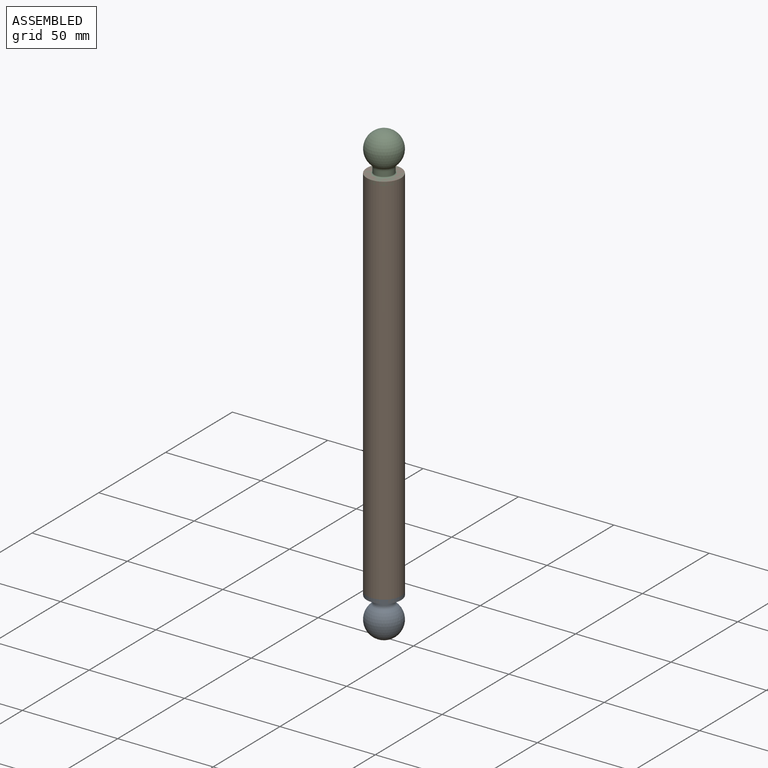
[diagram: assembled view]
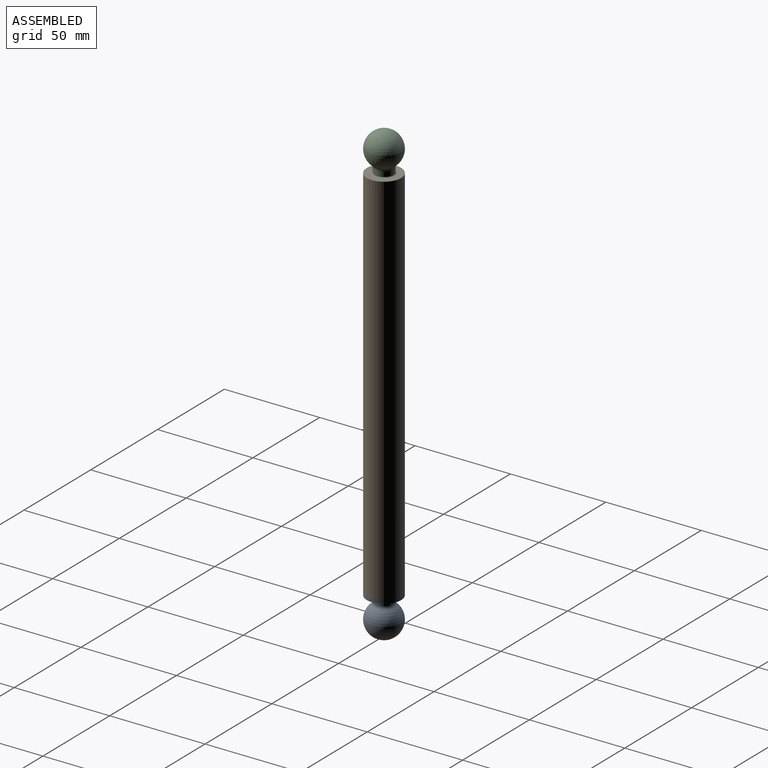
[diagram: assembled view, second angle]
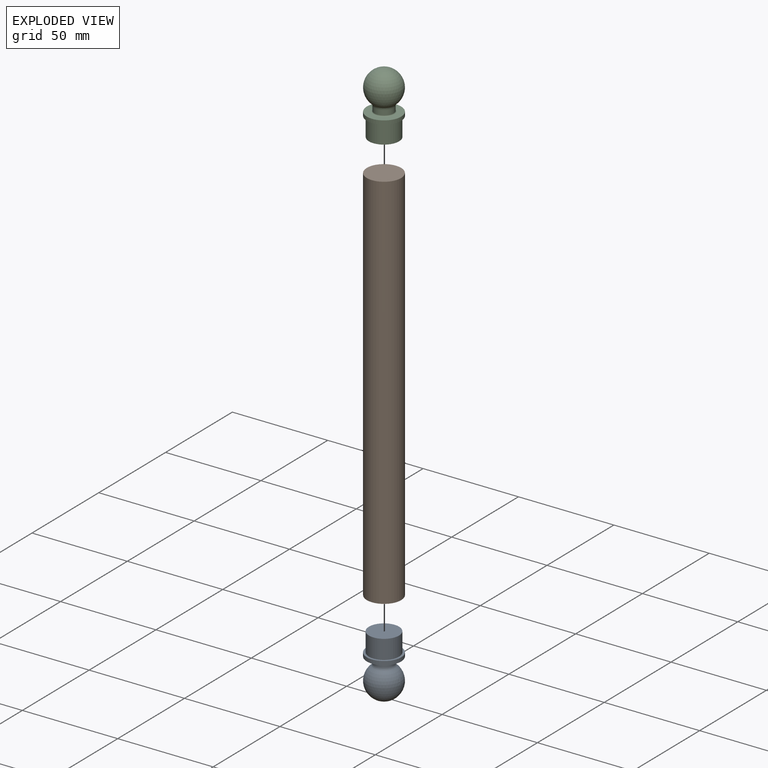
[diagram: exploded view]
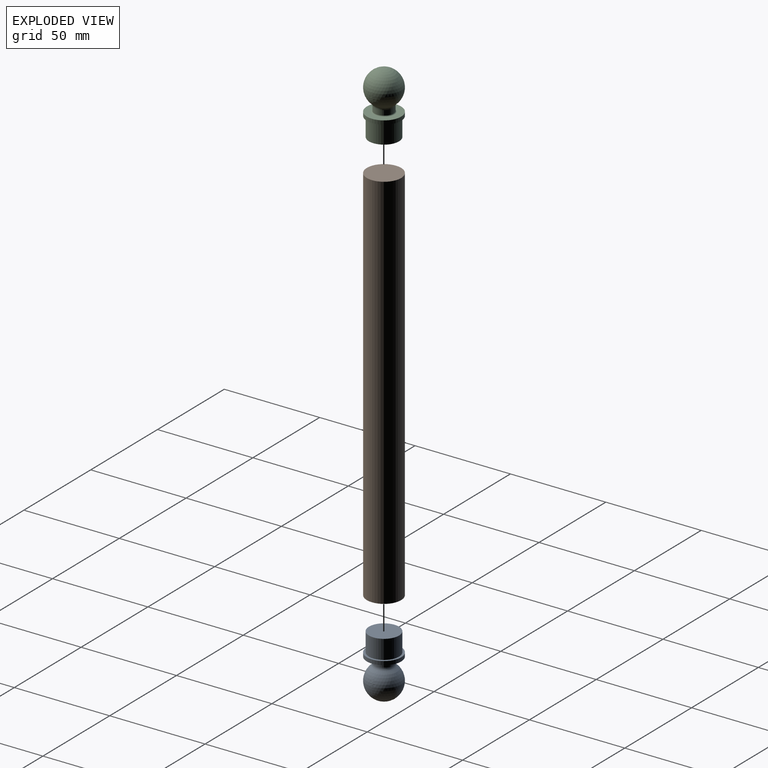
[diagram: exploded view, second angle]
ASSEMBLY  parts=3 mates=2
PART A: 9 faces, bbox 18x18x32.5 mm
  f0: plane 15.8x15.8mm, normal (0,0,1), area 196.1mm2, adj f1
  f1: cylinder r=7.9mm len=15.8mm, axis (0,0,1), area 496.4mm2, adj f0,f2
  f2: plane 18x18mm, normal (0,0,1), area 58.4mm2, adj f1,f3
  f3: cylinder r=9mm len=18mm, axis (0,0,1), area 113.1mm2, adj f2,f4
  f4: plane 18x18mm, normal (0,0,-1), area 159.4mm2, adj f3,f5
  f5: torus R=5.5mm, axis (0,0,1), area 25.6mm2, adj f4,f6
  f6: cylinder r=5mm len=10mm, axis (0,0,1), area 78.5mm2, adj f5,f7
  f7: torus R=7mm, axis (0,0,1), area 58.1mm2, adj f6,f8
  f8: sphere r=9mm, area 901.5mm2, adj f7
PART B: 3 faces, bbox 18x18x200 mm
  f0: cylinder r=9mm len=200mm, axis (0,0,-1), area 11309.7mm2, adj f1,f2
  f1: plane 18x18mm, normal (0,0,1), area 254.5mm2, adj f0
  f2: plane 18x18mm, normal (0,0,-1), area 254.5mm2, adj f0
PART C: same geometry as A
PLACE A t=(-24.56,-58.39,4.39)mm
PLACE B t=(-24.56,-58.39,15.88)mm
PLACE C rot(axis=(1,0,0),180deg) t=(-24.56,-58.39,227.36)mm
MATE fastened A.f1 <-> B.f0  axis (0,0,1) through (-24.56,-58.39,27.88)mm
MATE fastened C.f1 <-> B.f0  axis (0,0,-1) through (-24.56,-58.39,203.88)mm
